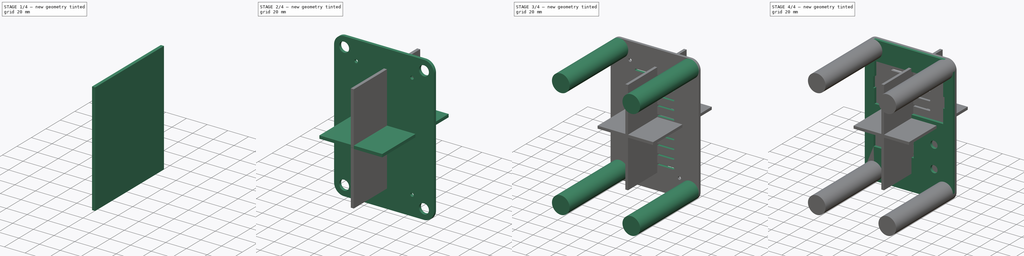
[diagram: build sequence overview — one tinted view per stage of 4, left to right]
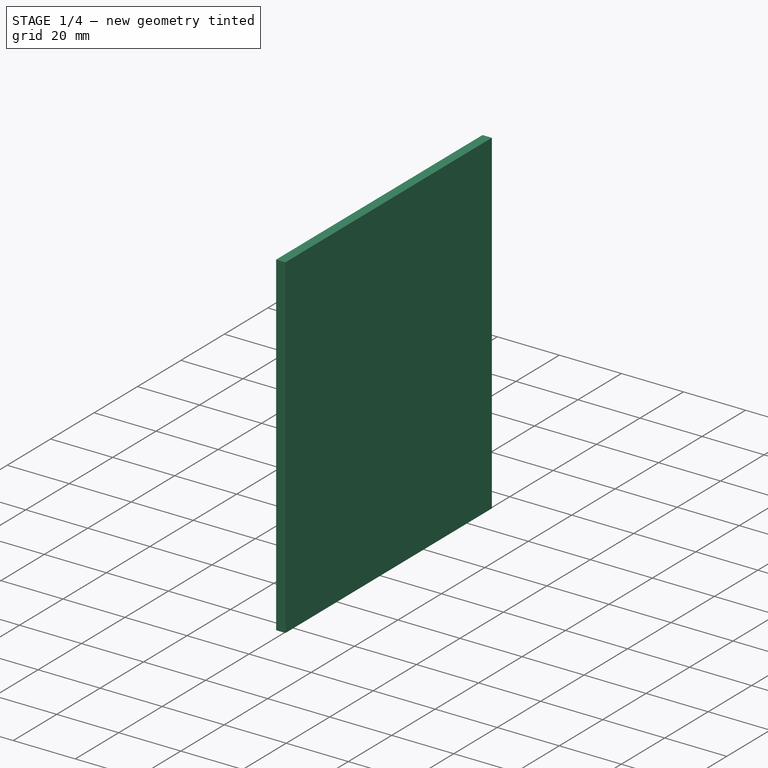
[diagram: stage 1 of 4 — iso view after this stage's code; geometry added in this stage tinted green]
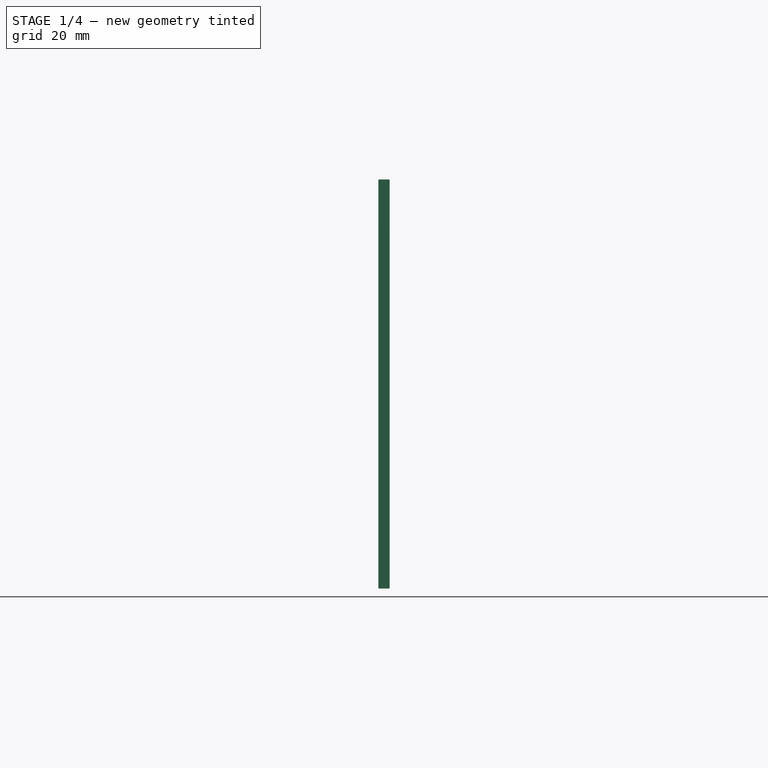
[diagram: stage 1 of 4 — front view after this stage's code; geometry added in this stage tinted green]
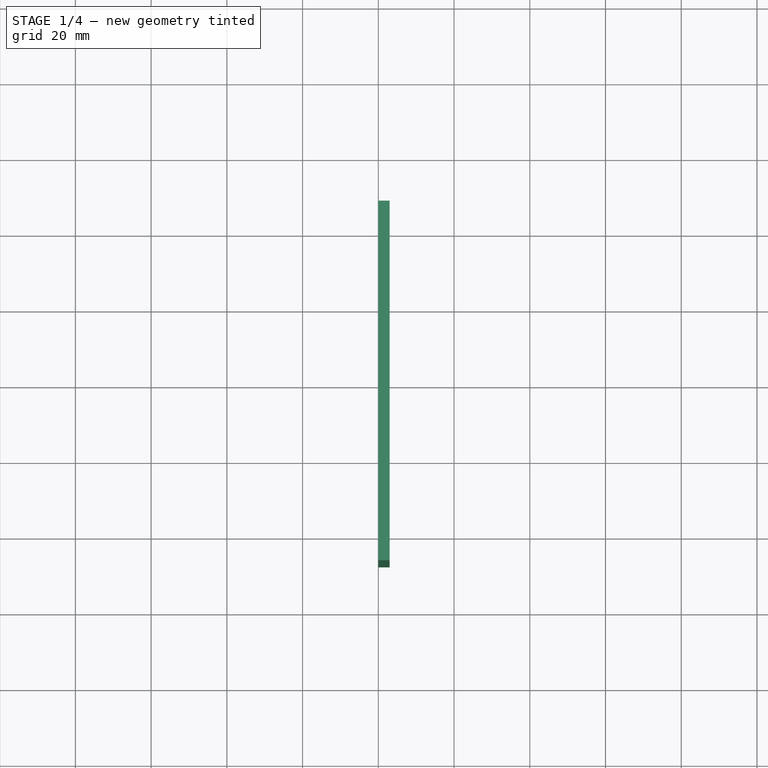
[diagram: stage 1 of 4 — top view after this stage's code; geometry added in this stage tinted green]
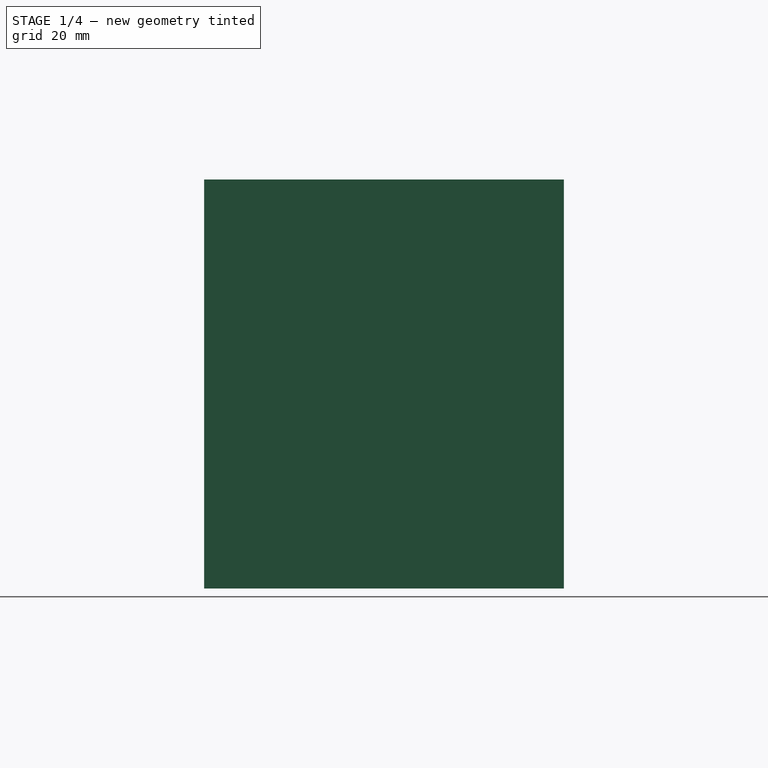
[diagram: stage 1 of 4 — right view after this stage's code; geometry added in this stage tinted green]
FCSTD DOCUMENT  (FreeCAD 1.0R39319 (Git))
Label: adjPSU
License: All rights reserved
LicenseURL: https://en.wikipedia.org/wiki/All_rights_reserved
objects: Sketcher::SketchObject×8, PartDesign::Pad×7, PartDesign::Body×6, Spreadsheet::Sheet×1, PartDesign::Pocket×1, PartDesign::LinearPattern×1
note: 48 computed .brp shape members not serialized (recipe doc carries the construction recipe); baked Part::Feature solids carry a one-line shape summary decoded from their .brp

FEATURE [PartDesign::Body] Body007  label="BottomSide"
  AllowCompound = false
  Group = -> [Sketch011,Pad004]
  Origin = -> Origin007
  Placement = pos=(0,0,-71.5) rot=(0,0,1;0rad)
  Tip = -> Pad004
FEATURE [Sketcher::SketchObject] Sketch012
  ArcFitTolerance = 1e-06
  AttachmentSupport = -> [YZ_Plane003]
  FullyConstrained = true
  MakeInternals = false
  MapMode = 5
  Placement = pos=(0,0,0) rot=(0.57735,0.57735,0.57735;2.0944rad)
  expr: Constraints[10] = Spreadsheet.BoxLength
  expr: Constraints[11] = Spreadsheet.BoxHeight - 37 mm
  sketch-geometry (5):
    g0: LineSegment StartX=-47.5 StartY=54 StartZ=0 EndX=-47.5 EndY=-54 EndZ=0
    g1: LineSegment StartX=-47.5 StartY=-54 StartZ=0 EndX=47.5 EndY=-54 EndZ=0
    g2: LineSegment StartX=47.5 StartY=-54 StartZ=0 EndX=47.5 EndY=54 EndZ=0
    g3: LineSegment StartX=47.5 StartY=54 StartZ=0 EndX=-47.5 EndY=54 EndZ=0
    g4: GeomPoint [constr] X=0 Y=0 Z=0
  constraints (12):
    c: Coincident(g0,g1)
    c: Coincident(g1,g2)
    c: Coincident(g2,g3)
    c: Coincident(g3,g0)
    c: Vertical(g0)
    c: Vertical(g2)
    c: Horizontal(g1)
    c: Horizontal(g3)
    c: Symmetric(g2,g0,g4)
    c: Coincident(g4,g-1)
    c: DistanceX(g3,g3) = 95
    c: DistanceY(g0,g0) = 108
FEATURE [PartDesign::Pad] Pad005
  Direction = (1,0,0)
  Length = 3
  Length2 = 10
  Placement = pos=(0,0,0) rot=(1,1,1;2.0944rad)
  Profile = -> Sketch012
  ReferenceAxis = -> Sketch012 [N_Axis]
  Suppressed = false
  Type = 0
  expr: Length = Spreadsheet.MaterialThickness
FEATURE [PartDesign::Body] Body003  label="RightSide"
  AllowCompound = false
  Group = -> [Sketch012,Pad005]
  Origin = -> Origin003
  Placement = pos=(46,0,0) rot=(0,0,1;0rad)
  Tip = -> Pad005
FEATURE [Sketcher::SketchObject] Sketch013
  ArcFitTolerance = 1e-06
  AttachmentSupport = -> [YZ_Plane008]
  FullyConstrained = true
  MakeInternals = false
  MapMode = 5
  Placement = pos=(0,0,0) rot=(0.57735,0.57735,0.57735;2.0944rad)
  expr: Constraints[10] = Spreadsheet.BoxLength
  expr: Constraints[11] = Spreadsheet.BoxHeight - 37 mm
  sketch-geometry (5):
    g0: LineSegment StartX=-47.5 StartY=54 StartZ=0 EndX=-47.5 EndY=-54 EndZ=0
    g1: LineSegment StartX=-47.5 StartY=-54 StartZ=0 EndX=47.5 EndY=-54 EndZ=0
    g2: LineSegment StartX=47.5 StartY=-54 StartZ=0 EndX=47.5 EndY=54 EndZ=0
    g3: LineSegment StartX=47.5 StartY=54 StartZ=0 EndX=-47.5 EndY=54 EndZ=0
    g4: GeomPoint [constr] X=0 Y=0 Z=0
  constraints (12):
    c: Coincident(g0,g1)
    c: Coincident(g1,g2)
    c: Coincident(g2,g3)
    c: Coincident(g3,g0)
    c: Vertical(g0)
    c: Vertical(g2)
    c: Horizontal(g1)
    c: Horizontal(g3)
    c: Symmetric(g2,g0,g4)
    c: Coincident(g4,g-1)
    c: DistanceX(g3,g3) = 95
    c: DistanceY(g0,g0) = 108
FEATURE [PartDesign::Pad] Pad006
  Direction = (1,0,0)
  Length = 3
  Length2 = 10
  Placement = pos=(0,0,0) rot=(1,1,1;2.0944rad)
  Profile = -> Sketch013
  ReferenceAxis = -> Sketch013 [N_Axis]
  Suppressed = false
  Type = 0
  expr: Length = Spreadsheet.MaterialThickness
FEATURE [PartDesign::Body] Body008  label="LeftSide"
  AllowCompound = false
  Group = -> [Sketch013,Pad006]
  Origin = -> Origin008
  Placement = pos=(-49,0,0) rot=(0,0,1;0rad)
  Tip = -> Pad006
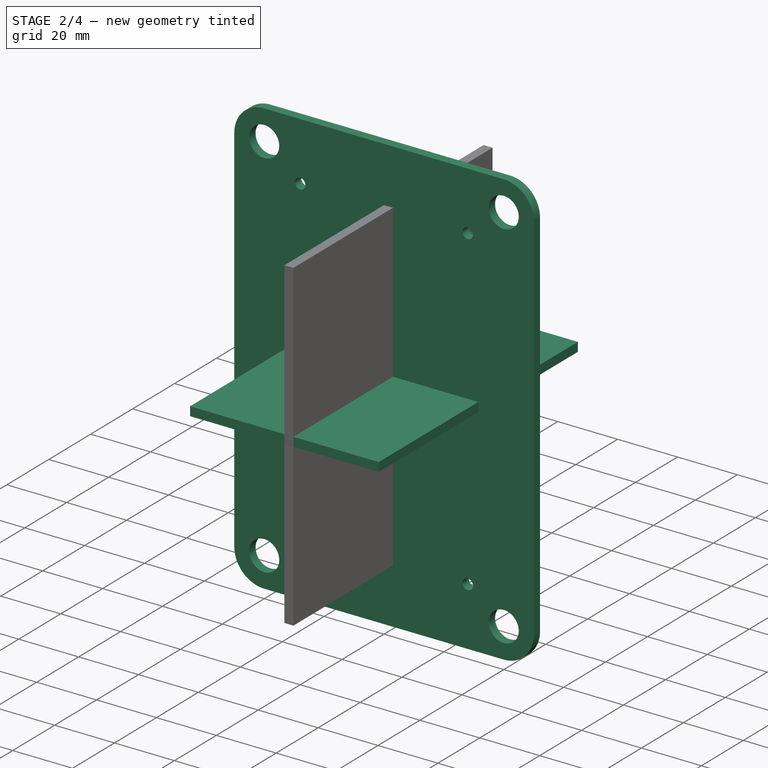
[diagram: stage 2 of 4 — iso view after this stage's code; geometry added in this stage tinted green]
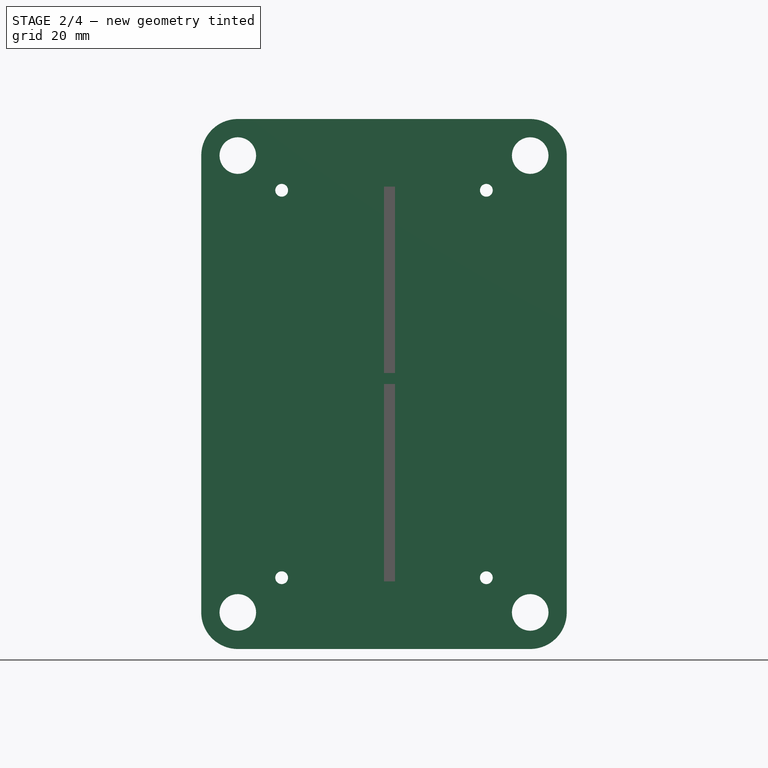
[diagram: stage 2 of 4 — front view after this stage's code; geometry added in this stage tinted green]
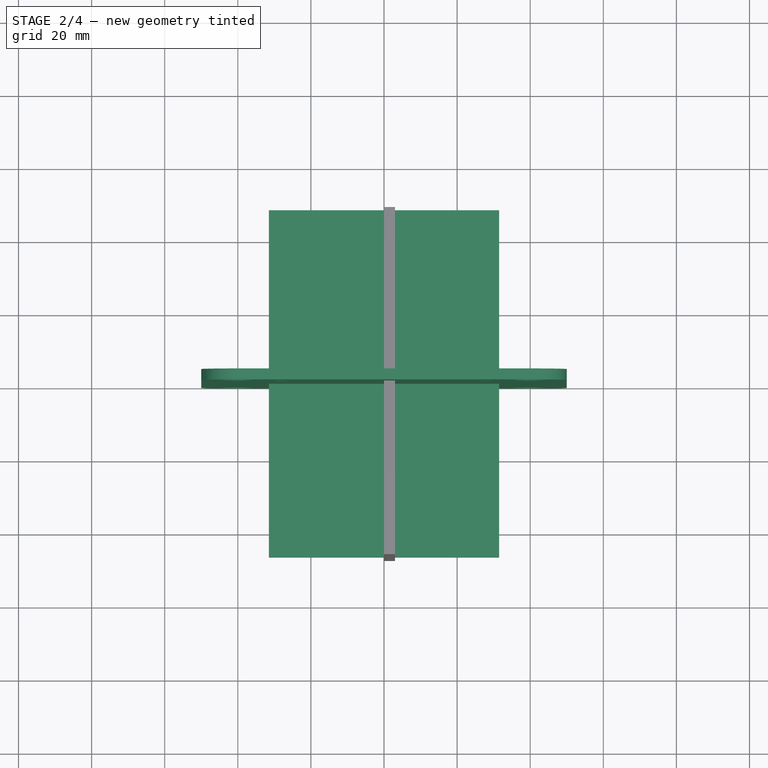
[diagram: stage 2 of 4 — top view after this stage's code; geometry added in this stage tinted green]
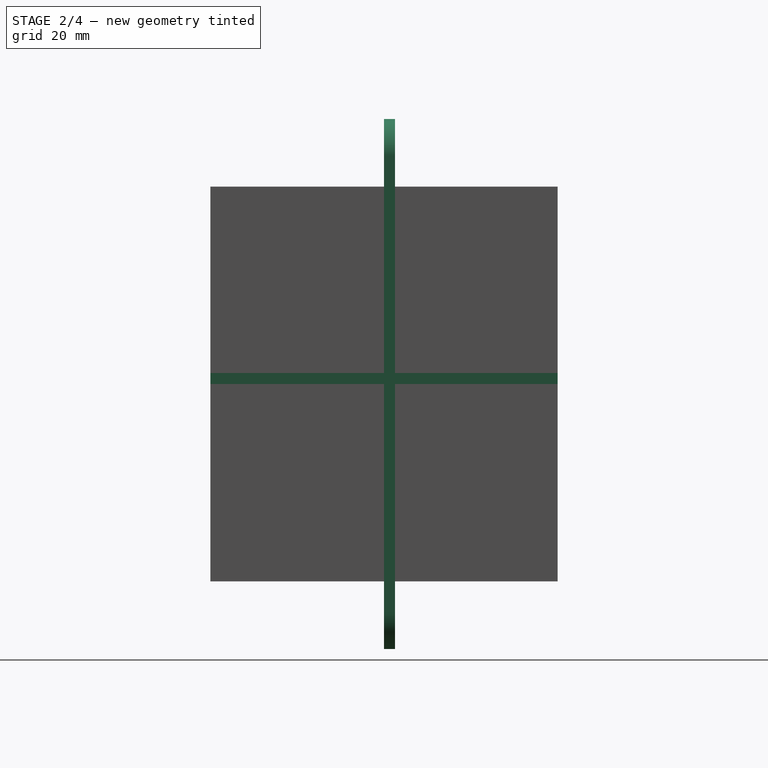
[diagram: stage 2 of 4 — right view after this stage's code; geometry added in this stage tinted green]
FEATURE [PartDesign::Body] Body006  label="FrontSide"
  AllowCompound = false
  Group = -> [Sketch006,Pad]
  Origin = -> Origin006
  Placement = pos=(0,-47.5,0) rot=(0,0,1;0rad)
  Tip = -> Pad
FEATURE [Sketcher::SketchObject] Sketch
  ArcFitTolerance = 1e-06
  AttachmentSupport = -> [XZ_Plane005]
  FullyConstrained = true
  MakeInternals = false
  MapMode = 5
  Placement = pos=(0,0,0) rot=(1,0,0;1.5708rad)
  expr: Constraints[20] = Spreadsheet.BoxHeight
  expr: Constraints[21] = Spreadsheet.BoxWidth
  sketch-geometry (18):
    g0: LineSegment StartX=-50 StartY=62.5 StartZ=0 EndX=-50 EndY=-62.5 EndZ=0
    g1: LineSegment StartX=-40 StartY=-72.5 StartZ=0 EndX=40 EndY=-72.5 EndZ=0
    g2: LineSegment StartX=50 StartY=-62.5 StartZ=0 EndX=50 EndY=62.5 EndZ=0
    g3: LineSegment StartX=40 StartY=72.5 StartZ=0 EndX=-40 EndY=72.5 EndZ=0
    g4: ArcOfCircle CenterX=-40 CenterY=62.5 CenterZ=0 NormalX=0 NormalY=0 NormalZ=1 AngleXU=0 Radius=10 StartAngle=1.5708 EndAngle=3.14159
    g5: ArcOfCircle CenterX=-40 CenterY=-62.5 CenterZ=0 NormalX=0 NormalY=0 NormalZ=1 AngleXU=0 Radius=10 StartAngle=3.14159 EndAngle=4.71239
    g6: ArcOfCircle CenterX=40 CenterY=-62.5 CenterZ=0 NormalX=0 NormalY=0 NormalZ=1 AngleXU=0 Radius=10 StartAngle=4.71239 EndAngle=6.28319
    g7: ArcOfCircle CenterX=40 CenterY=62.5 CenterZ=0 NormalX=0 NormalY=0 NormalZ=1 AngleXU=0 Radius=10 StartAngle=0 EndAngle=1.5708
    g8: GeomPoint [constr] X=-50 Y=72.5 Z=0
    g9: GeomPoint [constr] X=50 Y=-72.5 Z=0
    g10: Circle CenterX=40 CenterY=-62.5 CenterZ=0 NormalX=0 NormalY=0 NormalZ=1 AngleXU=0 Radius=5
    g11: Circle CenterX=-40 CenterY=-62.5 CenterZ=0 NormalX=0 NormalY=0 NormalZ=1 AngleXU=0 Radius=5
    g12: Circle CenterX=-40 CenterY=62.5 CenterZ=0 NormalX=0 NormalY=0 NormalZ=1 AngleXU=0 Radius=5
    g13: Circle CenterX=40 CenterY=62.5 CenterZ=0 NormalX=0 NormalY=0 NormalZ=1 AngleXU=0 Radius=5
    g14: Circle CenterX=-28 CenterY=-53 CenterZ=0 NormalX=0 NormalY=0 NormalZ=1 AngleXU=0 Radius=1.75
    g15: Circle CenterX=28 CenterY=-53 CenterZ=0 NormalX=0 NormalY=0 NormalZ=1 AngleXU=0 Radius=1.75
    g16: Circle CenterX=-28 CenterY=53 CenterZ=0 NormalX=0 NormalY=0 NormalZ=1 AngleXU=0 Radius=1.75
    g17: Circle CenterX=28 CenterY=53 CenterZ=0 NormalX=0 NormalY=0 NormalZ=1 AngleXU=0 Radius=1.75
  constraints (40):
    c: Tangent(g0,g4) = -1.5708
    c: Tangent(g0,g5) = -1.5708
    c: Tangent(g1,g5) = -1.5708
    c: Tangent(g1,g6) = -1.5708
    c: Tangent(g2,g6) = -1.5708
    c: Tangent(g2,g7) = -1.5708
    c: Tangent(g3,g7) = -1.5708
    c: Tangent(g3,g4) = -1.5708
    c: Vertical(g0)
    c: Vertical(g2)
    c: Horizontal(g1)
    c: Horizontal(g3)
    c: Equal(g4,g5)
    c: Equal(g5,g6)
    c: Equal(g6,g7)
    c: PointOnObject(g8,g0)
    c: PointOnObject(g8,g3)
    c: PointOnObject(g9,g1)
    c: PointOnObject(g9,g2)
    c: Radius(g5) = 10
    c: Distance(g1,g3) = 145
    c: Distance(g2,g0) = 100
    c: Symmetric(g4,g6,g-1)
    c: Coincident(g10,g6)
    c: Diameter(g10) = 10
    c: Equal(g10,g11)
    c: Symmetric(g10,g11,g-2)
    c: Equal(g10,g13)
    c: Symmetric(g10,g13,g-1)
    c: Equal(g11,g12)
    c: Symmetric(g11,g12,g-1)
    c: Diameter(g14) = 3.5
    c: Distance(g14,g-2) = 28
    c: Distance(g14,g-1) = 53
    c: Equal(g14,g15)
    c: Symmetric(g14,g15,g-2)
    c: Equal(g14,g16)
    c: Symmetric(g14,g16,g-1)
    c: Equal(g15,g17)
    c: Symmetric(g15,g17,g-1)
FEATURE [PartDesign::Pad] Pad001
  Direction = (0,-1,2e-16)
  Length = 3
  Length2 = 10
  Placement = pos=(0,0,0) rot=(1,0,0;1.5708rad)
  Profile = -> Sketch
  ReferenceAxis = -> Sketch [N_Axis]
  Reversed = true
  Suppressed = false
  Type = 0
  expr: Length = Spreadsheet.MaterialThickness
FEATURE [PartDesign::Body] Body005  label="RearSide"
  AllowCompound = false
  Group = -> [Sketch,Pad001,Sketch007,Pocket,LinearPattern,Sketch010,Pad003]
  Origin = -> Origin005
  Placement = pos=(0,47.5,0) rot=(0,0,1;0rad)
  Tip = -> Pad003
FEATURE [Sketcher::SketchObject] Sketch011
  ArcFitTolerance = 1e-06
  AttachmentSupport = -> [XY_Plane007]
  FullyConstrained = true
  MakeInternals = false
  MapMode = 5
  expr: Constraints[10] = Spreadsheet.BoxWidth - 37
  expr: Constraints[11] = Spreadsheet.BoxLength
  sketch-geometry (5):
    g0: LineSegment StartX=-31.5 StartY=47.5 StartZ=0 EndX=-31.5 EndY=-47.5 EndZ=0
    g1: LineSegment StartX=-31.5 StartY=-47.5 StartZ=0 EndX=31.5 EndY=-47.5 EndZ=0
    g2: LineSegment StartX=31.5 StartY=-47.5 StartZ=0 EndX=31.5 EndY=47.5 EndZ=0
    g3: LineSegment StartX=31.5 StartY=47.5 StartZ=0 EndX=-31.5 EndY=47.5 EndZ=0
    g4: GeomPoint [constr] X=0 Y=0 Z=0
  constraints (12):
    c: Coincident(g0,g1)
    c: Coincident(g1,g2)
    c: Coincident(g2,g3)
    c: Coincident(g3,g0)
    c: Vertical(g0)
    c: Vertical(g2)
    c: Horizontal(g1)
    c: Horizontal(g3)
    c: Symmetric(g2,g0,g4)
    c: Coincident(g4,g-1)
    c: DistanceX(g3,g3) = 63
    c: DistanceY(g0,g0) = 95
FEATURE [PartDesign::Pad] Pad004
  Direction = (0,0,1)
  Length = 3
  Length2 = 10
  Profile = -> Sketch011
  ReferenceAxis = -> Sketch011 [N_Axis]
  Suppressed = false
  Type = 0
  expr: Length = Spreadsheet.MaterialThickness
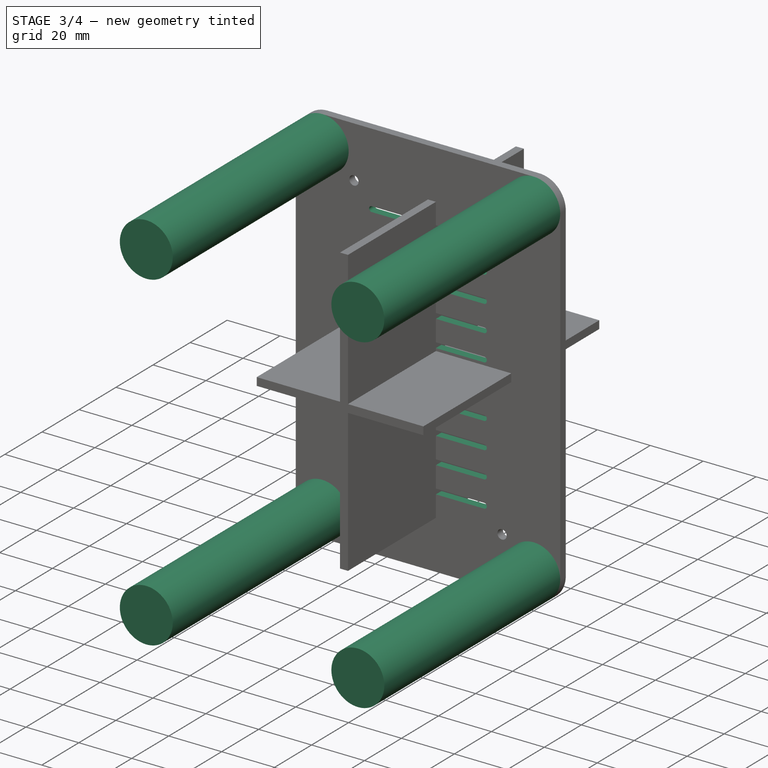
[diagram: stage 3 of 4 — iso view after this stage's code; geometry added in this stage tinted green]
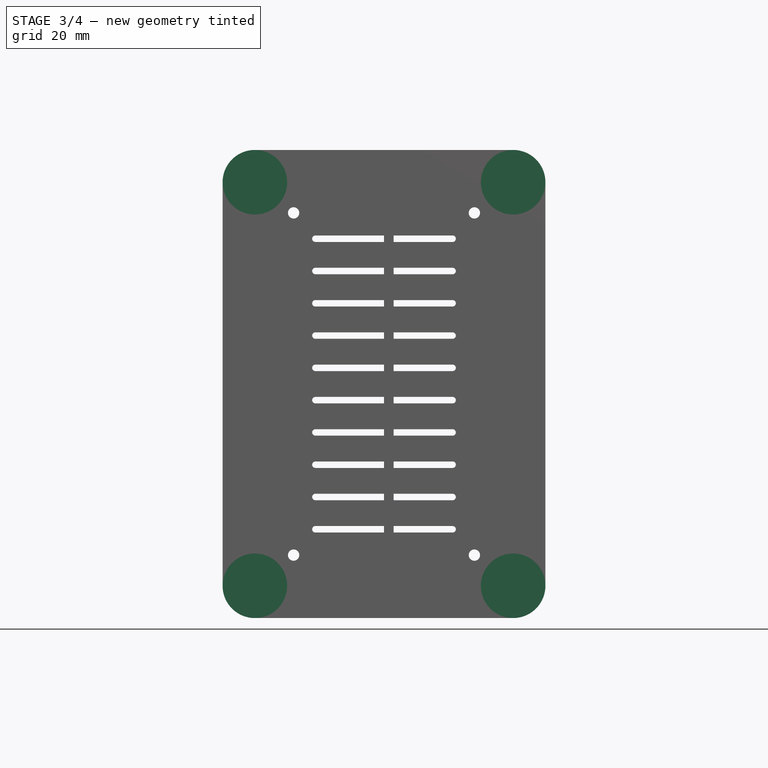
[diagram: stage 3 of 4 — front view after this stage's code; geometry added in this stage tinted green]
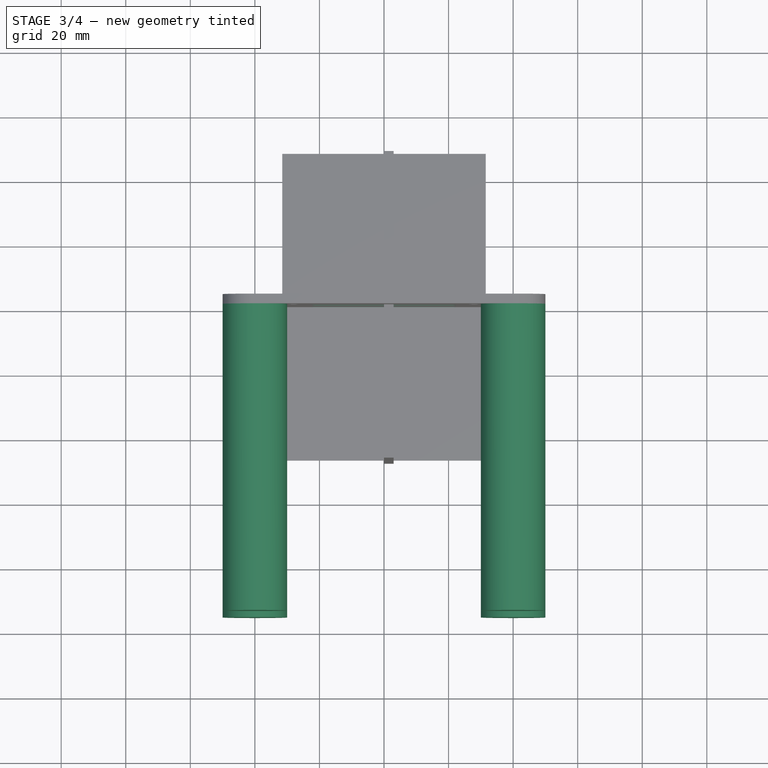
[diagram: stage 3 of 4 — top view after this stage's code; geometry added in this stage tinted green]
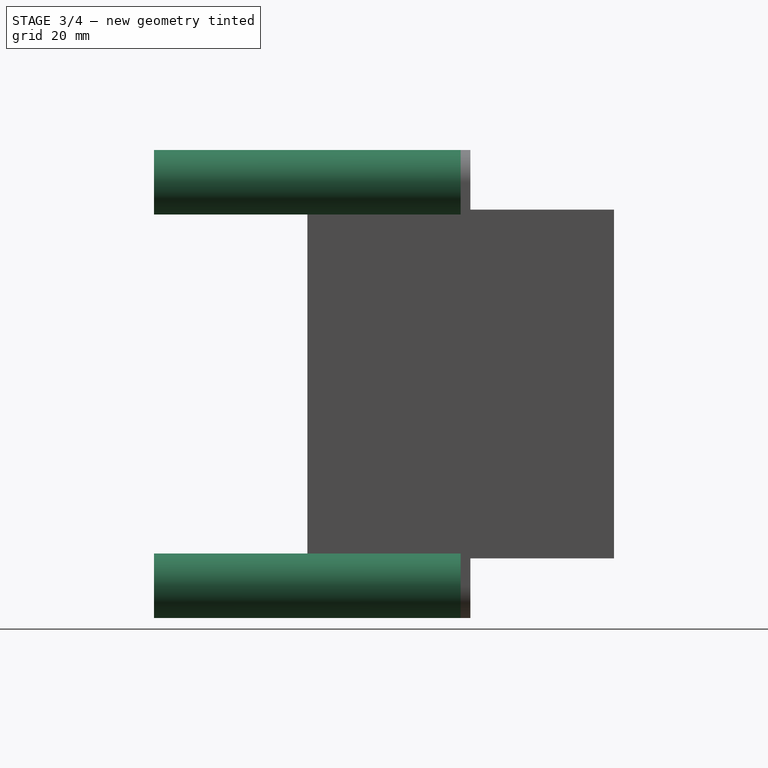
[diagram: stage 3 of 4 — right view after this stage's code; geometry added in this stage tinted green]
FEATURE [Sketcher::SketchObject] Sketch007
  ArcFitTolerance = 1e-06
  AttachmentSupport = -> [XZ_Plane005]
  FullyConstrained = true
  MakeInternals = false
  MapMode = 5
  Placement = pos=(0,0,0) rot=(1,0,0;1.5708rad)
  sketch-geometry (4):
    g0: ArcOfCircle CenterX=-21.25 CenterY=45 CenterZ=0 NormalX=0 NormalY=0 NormalZ=1 AngleXU=0 Radius=1 StartAngle=1.5708 EndAngle=4.71239
    g1: ArcOfCircle CenterX=21.25 CenterY=45 CenterZ=0 NormalX=0 NormalY=0 NormalZ=1 AngleXU=0 Radius=1 StartAngle=4.71239 EndAngle=7.85398
    g2: LineSegment StartX=-21.25 StartY=46 StartZ=0 EndX=21.25 EndY=46 EndZ=0
    g3: LineSegment StartX=-21.25 StartY=44 StartZ=0 EndX=21.25 EndY=44 EndZ=0
  constraints (9):
    c: Tangent(g0,g2) = 1.5708
    c: Tangent(g0,g3) = -1.5708
    c: Tangent(g1,g2) = 1.5708
    c: Tangent(g1,g3) = -1.5708
    c: Horizontal(g2)
    c: Radius(g1) = 1
    c: DistanceX(g0,g1) = 42.5
    c: Symmetric(g0,g1,g-2)
    c: DistanceY(g-1,g1) = 45
FEATURE [PartDesign::Pocket] Pocket
  BaseFeature = -> Pad001
  Direction = (0,1,-2e-16)
  Length = 5
  Length2 = 5
  Placement = pos=(0,0,0) rot=(1,0,0;1.5708rad)
  Profile = -> Sketch007
  ReferenceAxis = -> Sketch007 [N_Axis]
  Suppressed = false
  Type = 1
FEATURE [PartDesign::LinearPattern] LinearPattern
  BaseFeature = -> Pocket
  Direction = -> Sketch007 [V_Axis]
  Length = 90
  Mode = 0
  Occurrences = 10
  Offset = 10
  Originals = -> [Pocket]
  Placement = pos=(0,0,0) rot=(1,0,0;1.5708rad)
  Reversed = true
  Suppressed = false
  TransformMode = 0
FEATURE [PartDesign::Body] Body002  label="TopSide"
  AllowCompound = false
  Group = -> [Sketch008,Pad002]
  Origin = -> Origin002
  Placement = pos=(0,0,68.5) rot=(0,0,1;0rad)
  Tip = -> Pad002
FEATURE [Sketcher::SketchObject] Sketch010
  ArcFitTolerance = 1e-06
  AttachmentSupport = -> [XZ_Plane005]
  FullyConstrained = true
  MakeInternals = false
  MapMode = 5
  Placement = pos=(0,0,0) rot=(1,0,0;1.5708rad)
  expr: Constraints[0] = (Spreadsheet.BoxHeight - 20 mm) / 2
  expr: Constraints[1] = (Spreadsheet.BoxWidth - 20) / 2
  sketch-geometry (5):
    g0: GeomPoint X=-40 Y=62.5 Z=0
    g1: Circle CenterX=-40 CenterY=62.5 CenterZ=0 NormalX=0 NormalY=0 NormalZ=1 AngleXU=0 Radius=10
    g2: Circle CenterX=40 CenterY=62.5 CenterZ=0 NormalX=0 NormalY=0 NormalZ=1 AngleXU=0 Radius=10
    g3: Circle CenterX=-40 CenterY=-62.5 CenterZ=0 NormalX=0 NormalY=0 NormalZ=1 AngleXU=0 Radius=10
    g4: Circle CenterX=40 CenterY=-62.5 CenterZ=0 NormalX=0 NormalY=0 NormalZ=1 AngleXU=0 Radius=10
  constraints (10):
    c: DistanceY(g-1,g0) = 62.5
    c: DistanceX(g0,g-1) = 40
    c: Coincident(g1,g0)
    c: Diameter(g1) = 20
    c: Equal(g1,g2)
    c: Symmetric(g1,g2,g-2)
    c: Equal(g1,g3)
    c: Symmetric(g1,g3,g-1)
    c: Equal(g2,g4)
    c: Symmetric(g2,g4,g-1)
FEATURE [PartDesign::Pad] Pad003  label="StandOffPad"
  BaseFeature = -> LinearPattern
  Direction = (0,-1,2e-16)
  Length = 95
  Length2 = 10
  Placement = pos=(0,0,0) rot=(1,0,0;1.5708rad)
  Profile = -> Sketch010
  ReferenceAxis = -> Sketch010 [N_Axis]
  Suppressed = false
  Type = 0
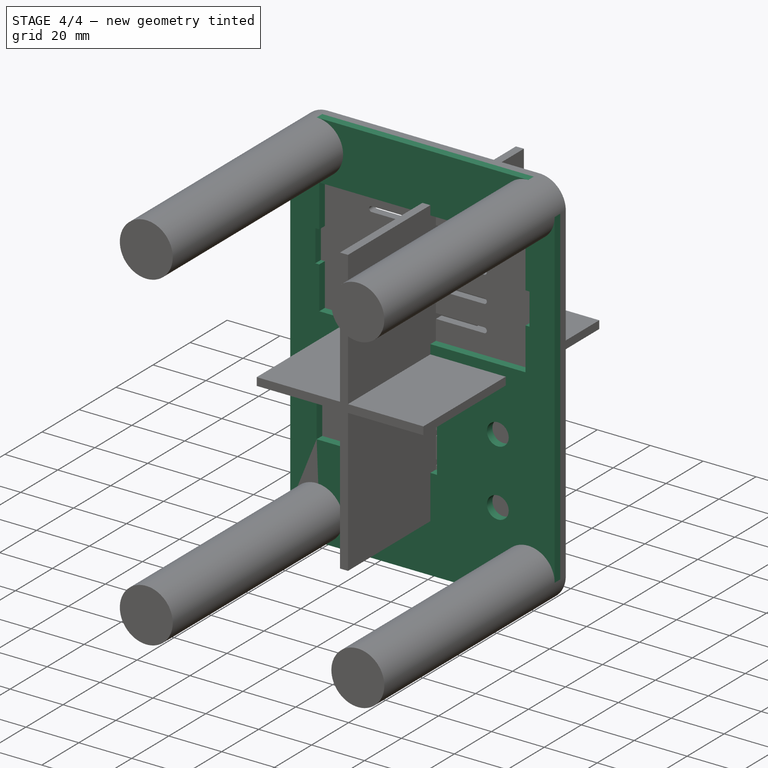
[diagram: stage 4 of 4 — iso view after this stage's code; geometry added in this stage tinted green]
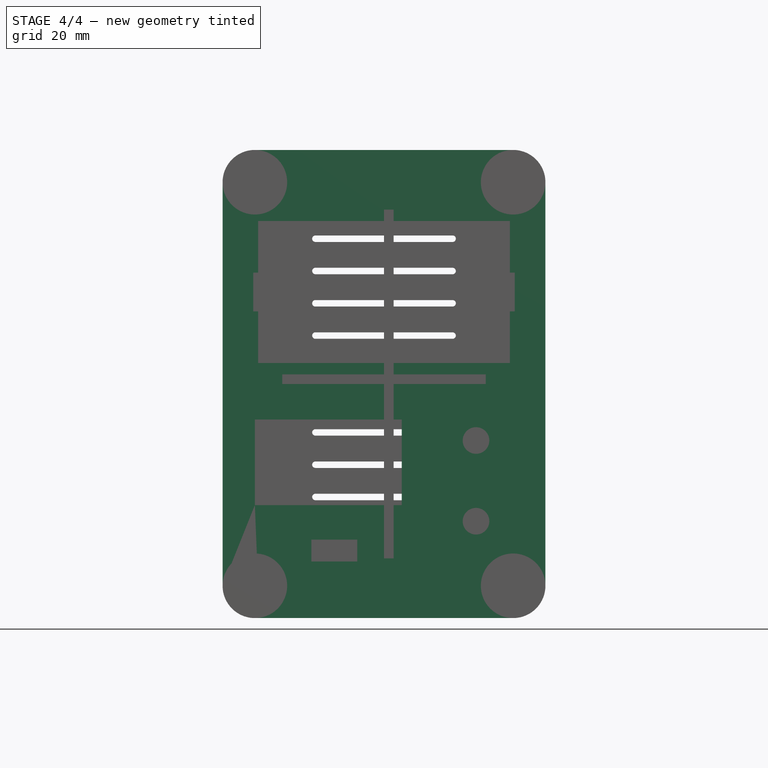
[diagram: stage 4 of 4 — front view after this stage's code; geometry added in this stage tinted green]
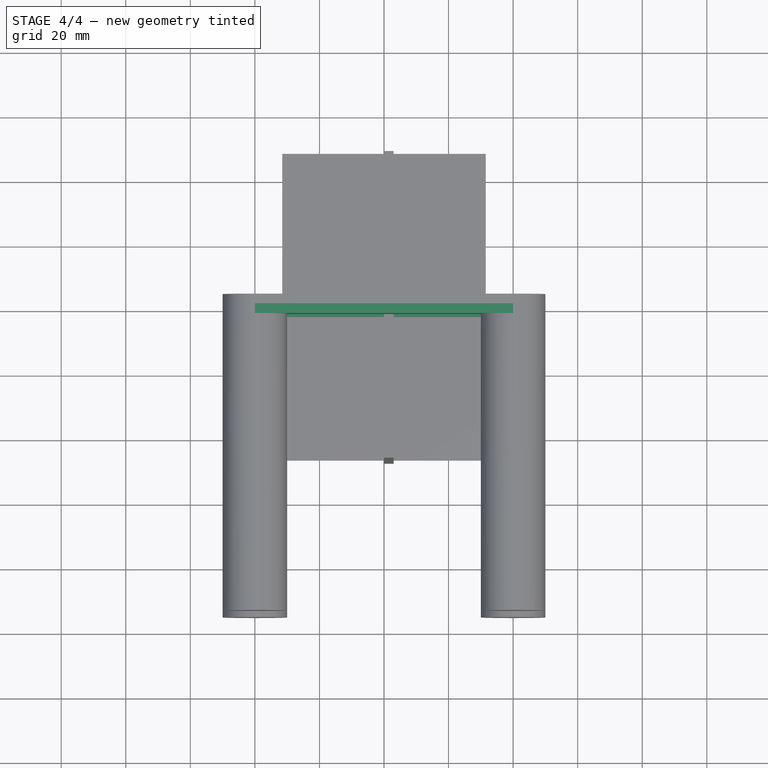
[diagram: stage 4 of 4 — top view after this stage's code; geometry added in this stage tinted green]
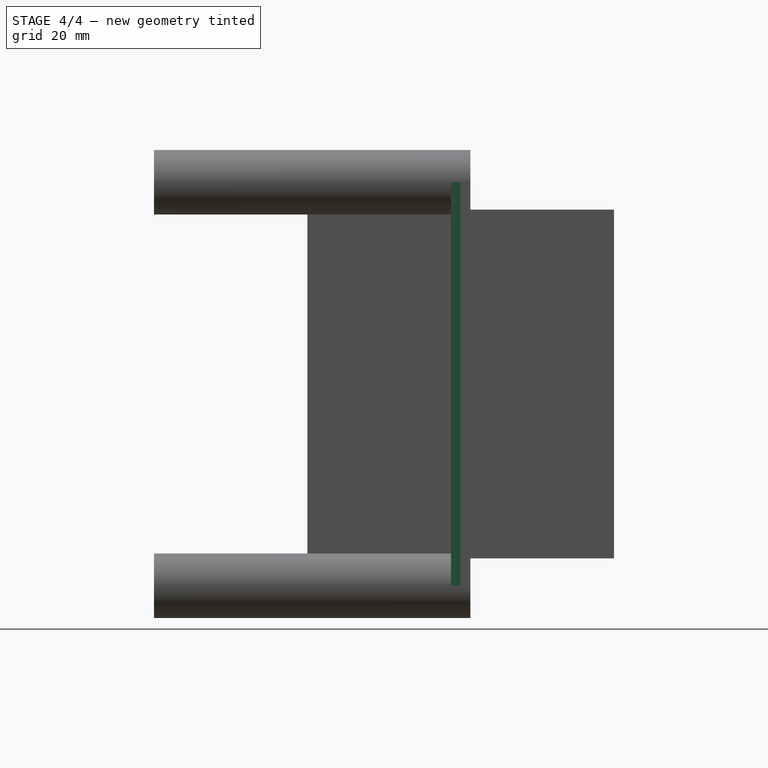
[diagram: stage 4 of 4 — right view after this stage's code; geometry added in this stage tinted green]
FEATURE [Spreadsheet::Sheet] Spreadsheet  label="Global"
  cells = A2='Material Thickness=; B2(MaterialThickness)==3 mm; A3='Box Width=; B3(BoxWidth)=100; A4='Box Length=; B4(BoxLength)=95; A5='Box Height=; B5(BoxHeight)==145 mm; A6='InterlockOffset=; B6(InterlockOffset)==1 mm
FEATURE [Sketcher::SketchObject] Sketch006
  ArcFitTolerance = 1e-06
  AttachmentSupport = -> [XZ_Plane006]
  FullyConstrained = true
  MakeInternals = false
  MapMode = 5
  Placement = pos=(0,0,0) rot=(1,0,0;1.5708rad)
  expr: Constraints[21] = Spreadsheet.BoxWidth
  sketch-geometry (36):
    g0: LineSegment StartX=-50 StartY=62.5 StartZ=0 EndX=-50 EndY=-62.5 EndZ=0
    g1: LineSegment StartX=-40 StartY=-72.5 StartZ=0 EndX=40 EndY=-72.5 EndZ=0
    g2: LineSegment StartX=50 StartY=-62.5 StartZ=0 EndX=50 EndY=62.5 EndZ=0
    g3: LineSegment StartX=40 StartY=72.5 StartZ=0 EndX=-40 EndY=72.5 EndZ=0
    g4: ArcOfCircle CenterX=-40 CenterY=62.5 CenterZ=0 NormalX=0 NormalY=0 NormalZ=1 AngleXU=0 Radius=10 StartAngle=1.5708 EndAngle=3.14159
    g5: ArcOfCircle CenterX=-40 CenterY=-62.5 CenterZ=0 NormalX=0 NormalY=0 NormalZ=1 AngleXU=0 Radius=10 StartAngle=3.14159 EndAngle=4.71239
    g6: ArcOfCircle CenterX=40 CenterY=-62.5 CenterZ=0 NormalX=0 NormalY=0 NormalZ=1 AngleXU=0 Radius=10 StartAngle=4.71239 EndAngle=6.28319
    g7: ArcOfCircle CenterX=40 CenterY=62.5 CenterZ=0 NormalX=0 NormalY=0 NormalZ=1 AngleXU=0 Radius=10 StartAngle=0 EndAngle=1.5708
    g8: GeomPoint [constr] X=-50 Y=72.5 Z=0
    g9: GeomPoint [constr] X=50 Y=-72.5 Z=0
    g10: Circle CenterX=40 CenterY=-62.5 CenterZ=0 NormalX=0 NormalY=0 NormalZ=1 AngleXU=0 Radius=2.5
    g11: Circle CenterX=-40 CenterY=-62.5 CenterZ=0 NormalX=0 NormalY=0 NormalZ=1 AngleXU=0 Radius=2.5
    g12: Circle CenterX=-40 CenterY=62.5 CenterZ=0 NormalX=0 NormalY=0 NormalZ=1 AngleXU=0 Radius=2.5
    g13: Circle CenterX=40 CenterY=62.5 CenterZ=0 NormalX=0 NormalY=0 NormalZ=1 AngleXU=0 Radius=2.5
    g14: LineSegment StartX=-39 StartY=50.5 StartZ=0 EndX=39 EndY=50.5 EndZ=0
    g15: LineSegment StartX=39 StartY=50.5 StartZ=0 EndX=39 EndY=34.5 EndZ=0
    g16: LineSegment StartX=39 StartY=34.5 StartZ=0 EndX=40.5 EndY=34.5 EndZ=0
    g17: LineSegment StartX=40.5 StartY=34.5 StartZ=0 EndX=40.5 EndY=22.5 EndZ=0
    g18: LineSegment StartX=40.5 StartY=22.5 StartZ=0 EndX=39 EndY=22.5 EndZ=0
    g19: LineSegment StartX=39 StartY=22.5 StartZ=0 EndX=39 EndY=6.5 EndZ=0
    g20: LineSegment StartX=39 StartY=6.5 StartZ=0 EndX=-39 EndY=6.5 EndZ=0
    g21: LineSegment StartX=-39 StartY=6.5 StartZ=0 EndX=-39 EndY=22.5 EndZ=0
    g22: LineSegment StartX=-39 StartY=22.5 StartZ=0 EndX=-40.5 EndY=22.5 EndZ=0
    g23: LineSegment StartX=-40.5 StartY=22.5 StartZ=0 EndX=-40.5 EndY=34.5 EndZ=0
    g24: LineSegment StartX=-40.5 StartY=34.5 StartZ=0 EndX=-39 EndY=34.5 EndZ=0
    g25: LineSegment StartX=-39 StartY=34.5 StartZ=0 EndX=-39 EndY=50.5 EndZ=0
    g26: Circle CenterX=28.5 CenterY=-42.5 CenterZ=0 NormalX=0 NormalY=0 NormalZ=1 AngleXU=0 Radius=4.125
    g27: Circle CenterX=28.5 CenterY=-17.5 CenterZ=0 NormalX=0 NormalY=0 NormalZ=1 AngleXU=0 Radius=4.125
    g28: LineSegment StartX=-22.5 StartY=-48.2 StartZ=0 EndX=-22.5 EndY=-55 EndZ=0
    g29: LineSegment StartX=-22.5 StartY=-55 StartZ=0 EndX=-8.3 EndY=-55 EndZ=0
    g30: LineSegment StartX=-8.3 StartY=-55 StartZ=0 EndX=-8.3 EndY=-48.2 EndZ=0
    g31: LineSegment StartX=-8.3 StartY=-48.2 StartZ=0 EndX=-22.5 EndY=-48.2 EndZ=0
    g32: LineSegment StartX=-40 StartY=-11 StartZ=0 EndX=-40 EndY=-37.5 EndZ=0
    g33: LineSegment StartX=-40 StartY=-37.5 StartZ=0 EndX=5.5 EndY=-37.5 EndZ=0
    g34: LineSegment StartX=5.5 StartY=-37.5 StartZ=0 EndX=5.5 EndY=-11 EndZ=0
    g35: LineSegment StartX=5.5 StartY=-11 StartZ=0 EndX=-40 EndY=-11 EndZ=0
  constraints (95):
    c: Tangent(g0,g4) = -1.5708
    c: Tangent(g0,g5) = -1.5708
    c: Tangent(g1,g5) = -1.5708
    c: Tangent(g1,g6) = -1.5708
    c: Tangent(g2,g6) = -1.5708
    c: Tangent(g2,g7) = -1.5708
    c: Tangent(g3,g7) = -1.5708
    c: Tangent(g3,g4) = -1.5708
    c: Vertical(g0)
    c: Vertical(g2)
    c: Horizontal(g1)
    c: Horizontal(g3)
    c: Equal(g4,g5)
    c: Equal(g5,g6)
    c: Equal(g6,g7)
    c: PointOnObject(g8,g0)
    c: PointOnObject(g8,g3)
    c: PointOnObject(g9,g1)
    c: PointOnObject(g9,g2)
    c: Radius(g5) = 10
    c: Symmetric(g4,g6,g-1)
    c: Distance(g2,g0) = 100
    c: Distance(g1,g3) = 145
    c: Coincident(g10,g6)
    c: Diameter(g10) = 5
    c: Equal(g10,g11)
    c: Symmetric(g10,g11,g-2)
    c: Equal(g10,g12)
    c: Symmetric(g10,g12,g-1)
    c: Equal(g10,g13)
    c: Symmetric(g10,g13,g-1)
    c: Coincident(g14,g15)
    c: Vertical(g15)
    c: Coincident(g15,g16)
    c: Coincident(g16,g17)
    c: Vertical(g17)
    c: Coincident(g17,g18)
    c: Coincident(g18,g19)
    c: Vertical(g19)
    c: Coincident(g19,g20)
    c: Coincident(g20,g21)
    c: Vertical(g21)
    c: Coincident(g21,g22)
    c: Coincident(g22,g23)
    c: Vertical(g23)
    c: Coincident(g23,g24)
    c: Coincident(g24,g25)
    c: Coincident(g25,g14)
    c: Vertical(g25)
    c: DistanceX(g14,g14) = 78
    c: Symmetric(g14,g14,g-2)
    c: Equal(g20,g14)
    c: Symmetric(g20,g19,g-2)
    c: DistanceX(g22,g21) = 1.5
    c: DistanceY(g20,g14) = 44
    c: DistanceY(g14,g8) = 22
    c: Horizontal(g22)
    c: Equal(g22,g24)
    c: Equal(g24,g18)
    c: Equal(g18,g16)
    c: Horizontal(g18)
    c: Horizontal(g21,g18)
    c: Horizontal(g24,g15)
    c: DistanceY(g23,g23) = 12
    c: Equal(g25,g21)
    c: Diameter(g26) = 8.25
    c: DistanceX(g26,g9) = 21.5
    c: DistanceY(g9,g26) = 30
    c: Diameter(g27) = 8.25
    c: Vertical(g26,g27)
    c: DistanceY(g26,g27) = 25
    c: Coincident(g28,g29)
    c: Coincident(g29,g30)
    c: Coincident(g30,g31)
    c: Coincident(g31,g28)
    c: Vertical(g28)
    c: Vertical(g30)
    c: Horizontal(g29)
    c: Horizontal(g31)
    c: Coincident(g32,g33)
    c: Coincident(g33,g34)
    c: Coincident(g34,g35)
    c: Coincident(g35,g32)
    c: Vertical(g32)
    c: Vertical(g34)
    c: Horizontal(g33)
    c: Horizontal(g35)
    c: DistanceX(g31,g31) = 14.2
    c: DistanceY(g28,g28) = 6.8
    c: DistanceX(g35,g35) = 45.5
    c: DistanceY(g32,g32) = 26.5
    c: DistanceX(g0,g28) = 27.5
    c: Distance(g0,g32) = 10
    c: Distance(g1,g29) = 17.5
    c: DistanceY(g1,g32) = 35
FEATURE [PartDesign::Pad] Pad
  Direction = (0,-1,2e-16)
  Length = 3
  Length2 = 10
  Placement = pos=(0,0,0) rot=(1,0,0;1.5708rad)
  Profile = -> Sketch006
  ReferenceAxis = -> Sketch006 [N_Axis]
  Suppressed = false
  Type = 0
  expr: Length = Spreadsheet.MaterialThickness
FEATURE [Sketcher::SketchObject] Sketch008
  ArcFitTolerance = 1e-06
  AttachmentSupport = -> [XY_Plane002]
  FullyConstrained = true
  MakeInternals = false
  MapMode = 5
  expr: Constraints[10] = Spreadsheet.BoxWidth - 37
  expr: Constraints[11] = Spreadsheet.BoxLength
  sketch-geometry (5):
    g0: LineSegment StartX=-31.5 StartY=47.5 StartZ=0 EndX=-31.5 EndY=-47.5 EndZ=0
    g1: LineSegment StartX=-31.5 StartY=-47.5 StartZ=0 EndX=31.5 EndY=-47.5 EndZ=0
    g2: LineSegment StartX=31.5 StartY=-47.5 StartZ=0 EndX=31.5 EndY=47.5 EndZ=0
    g3: LineSegment StartX=31.5 StartY=47.5 StartZ=0 EndX=-31.5 EndY=47.5 EndZ=0
    g4: GeomPoint [constr] X=0 Y=0 Z=0
  constraints (12):
    c: Coincident(g0,g1)
    c: Coincident(g1,g2)
    c: Coincident(g2,g3)
    c: Coincident(g3,g0)
    c: Vertical(g0)
    c: Vertical(g2)
    c: Horizontal(g1)
    c: Horizontal(g3)
    c: Symmetric(g2,g0,g4)
    c: Coincident(g4,g-1)
    c: DistanceX(g3,g3) = 63
    c: DistanceY(g0,g0) = 95
FEATURE [PartDesign::Pad] Pad002
  Direction = (0,0,1)
  Length = 3
  Length2 = 10
  Profile = -> Sketch008
  ReferenceAxis = -> Sketch008 [N_Axis]
  Suppressed = false
  Type = 0
  expr: Length = Spreadsheet.MaterialThickness
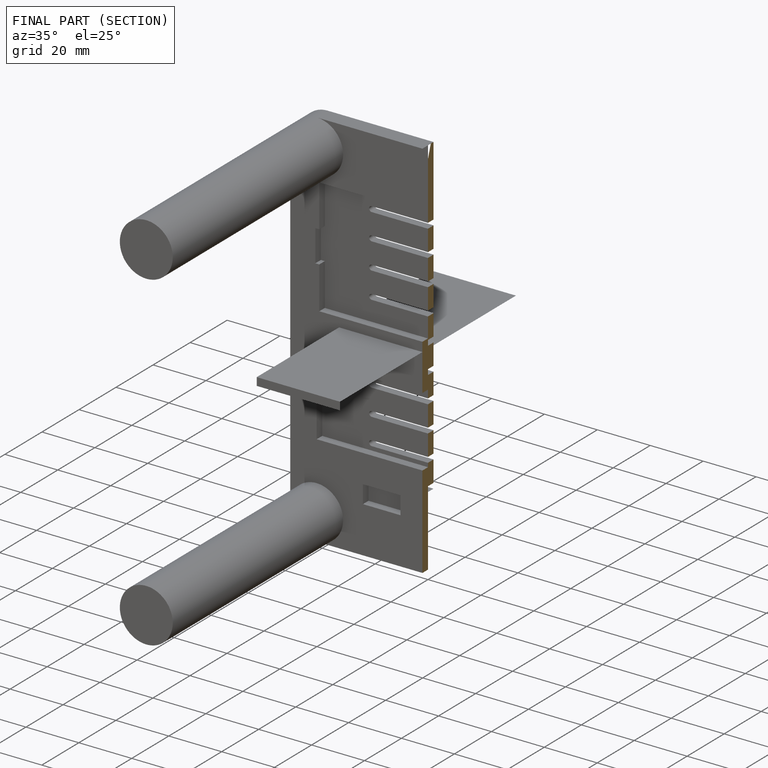
[diagram: finished part — half-section view (interior)]
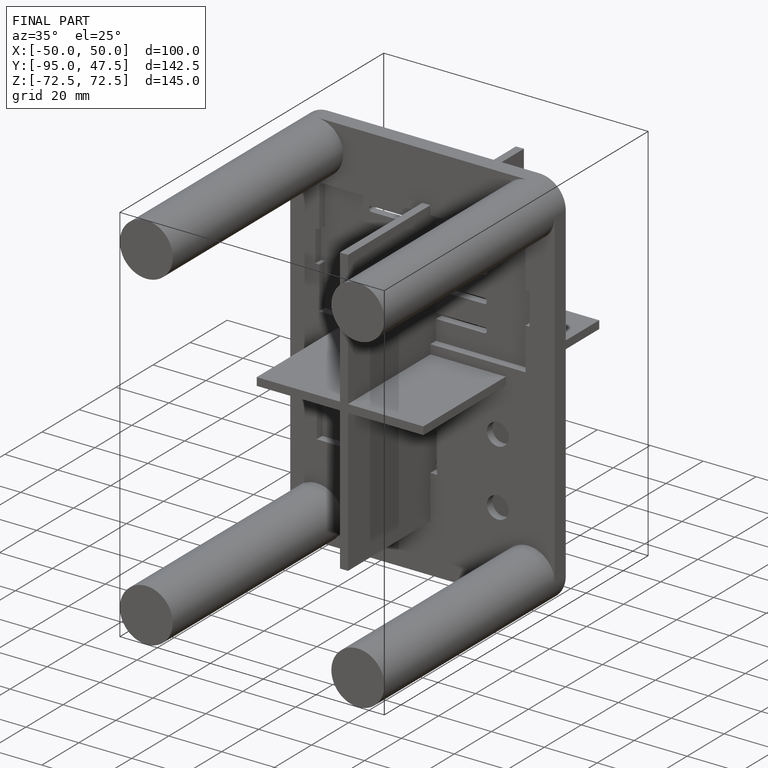
[diagram: finished part — iso view with bounding-box wireframe]
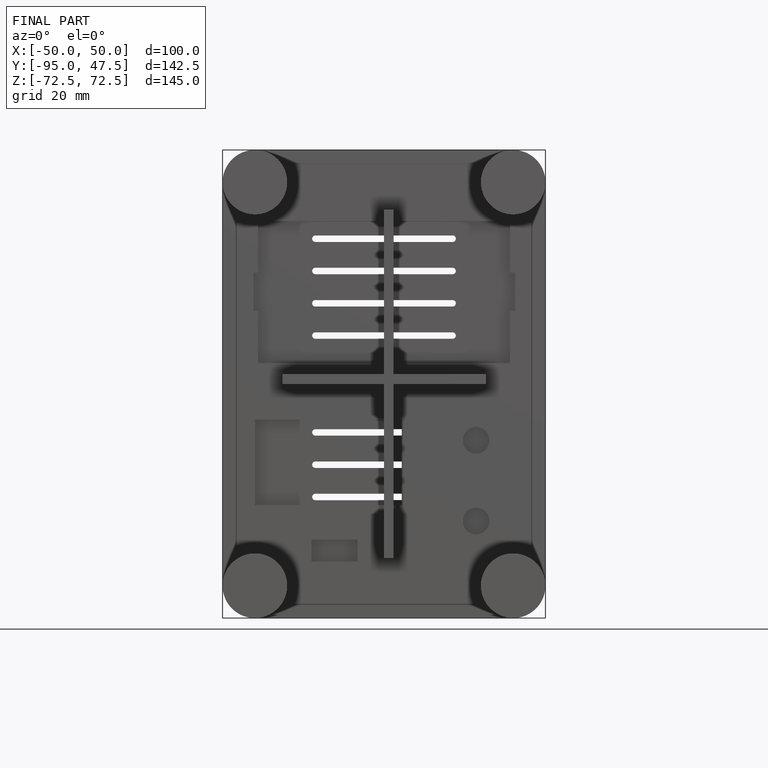
[diagram: finished part — front view with bounding-box wireframe]
